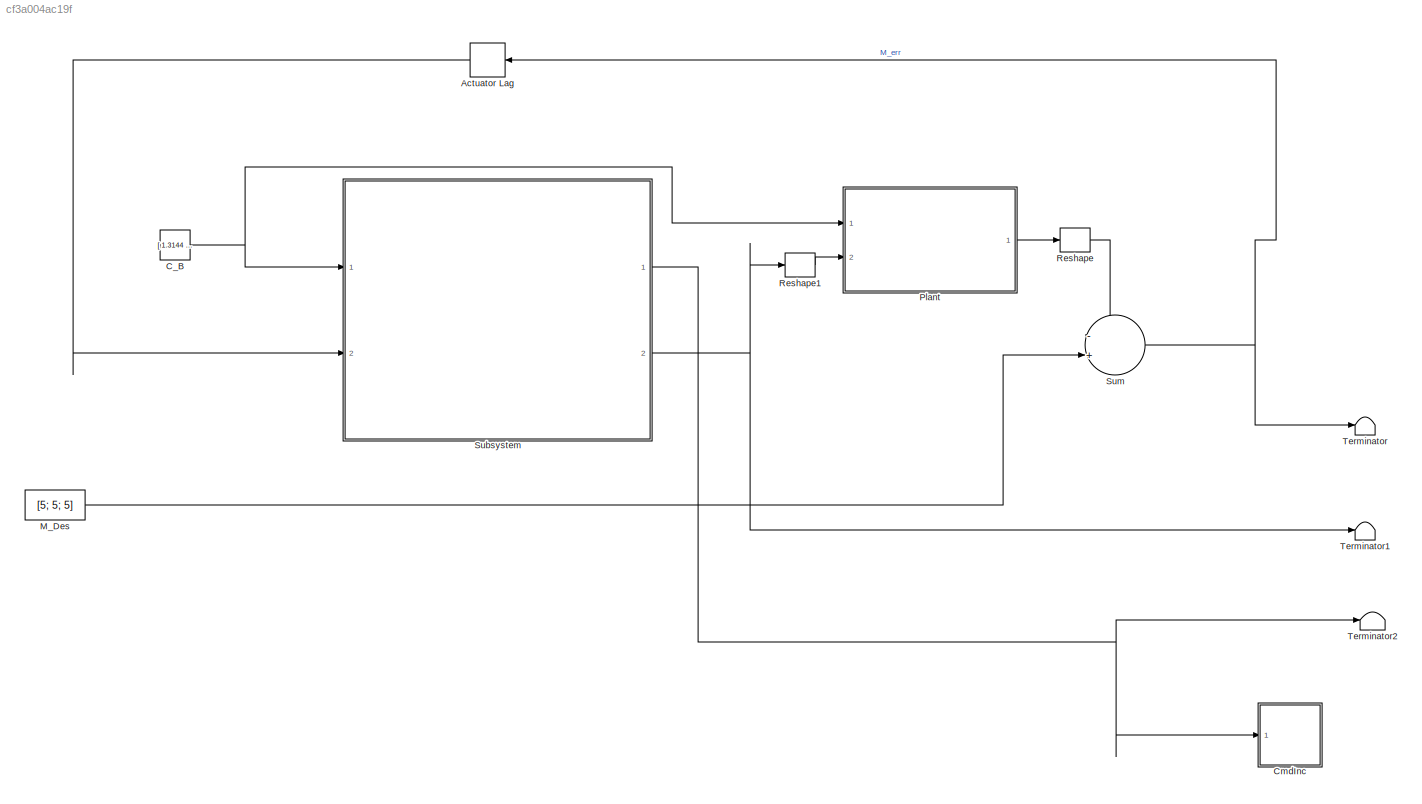
MODEL slx_cf3a004ac19f
KIND model
CONFIG AbsTol = auto
CONFIG FixedStep = auto
CONFIG MaxStep = auto
CONFIG MinStep = auto
CONFIG RelTol = 1e-3
CONFIG SampleTimeConstraint = Unconstrained
CONFIG Solver = ode3
CONFIG SolverMode = Auto
CONFIG SolverName = ode3
CONFIG StartTime = 0.0
CONFIG StopTime = 100.0
BLOCK [Delay]  Actuator Lag
  DelayLength = 1
  InitialCondition = [0;0;0]'
  InputPortMap = u0
  Ports = [1, 1]
  SampleTime = 0.1
BLOCK [Constant] C_B
  Value = [ 1.3144   -1.3144         0    0.5155\n;         0         0   -3.9998         0;\n    0.2782   -0.2782         0   -1.6581]
  VectorParams1D = off
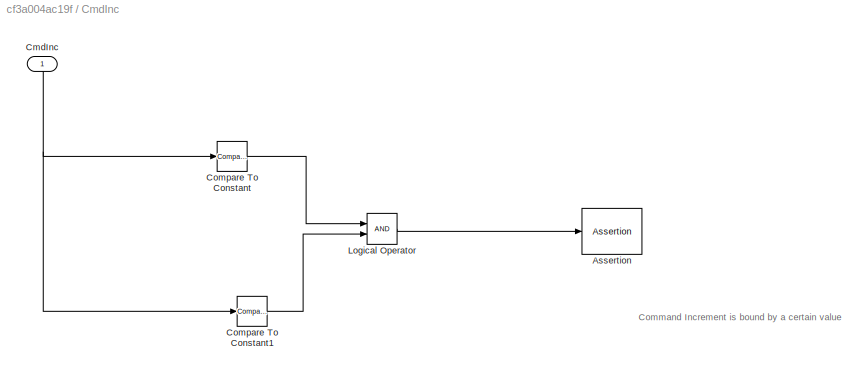
BLOCK [SubSystem] CmdInc
  Ports = [1]
  RequestExecContextInheritance = off
  Variant = off
BLOCK [Assertion] CmdInc/Assertion
BLOCK [Inport] CmdInc/CmdInc 
  IconDisplay = Port number
BLOCK [Reference] CmdInc/Compare To Constant  REF=simulink/Logic and Bit
Operations/Compare
To Constant
  Ports = [1, 1]
  SourceBlock = simulink/Logic and Bit\nOperations/Compare\nTo Constant
  SourceType = Compare To Constant
BLOCK [Reference] CmdInc/Compare To Constant1  REF=simulink/Logic and Bit
Operations/Compare
To Constant
  Ports = [1, 1]
  SourceBlock = simulink/Logic and Bit\nOperations/Compare\nTo Constant
  SourceType = Compare To Constant
BLOCK [Logic] CmdInc/Logical Operator
  AllPortsSameDT = off
  OutDataTypeStr = boolean
  Ports = [2, 1]
BLOCK [Constant] M_Des
  Value = [5; 5; 5]
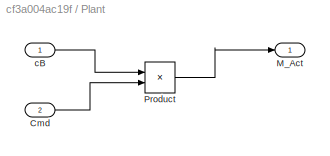
BLOCK [SubSystem] Plant
  Ports = [2, 1]
  RequestExecContextInheritance = off
  Variant = off
BLOCK [Inport] Plant/Cmd
  IconDisplay = Port number
  Port = 2
BLOCK [Outport] Plant/M_Act
  IconDisplay = Port number
BLOCK [Product] Plant/Product
  InputSameDT = off
  Multiplication = Matrix(*)
  OutDataTypeStr = Inherit: Inherit via internal rule
  Ports = [2, 1]
  RndMeth = Floor
  SaturateOnIntegerOverflow = off
BLOCK [Inport] Plant/cB
  IconDisplay = Port number
BLOCK [Reshape] Reshape
  Ports = [1, 1]
BLOCK [Reshape] Reshape1
  OutputDimensionality = Customize
  OutputDimensions = [4,1]
  Ports = [1, 1]
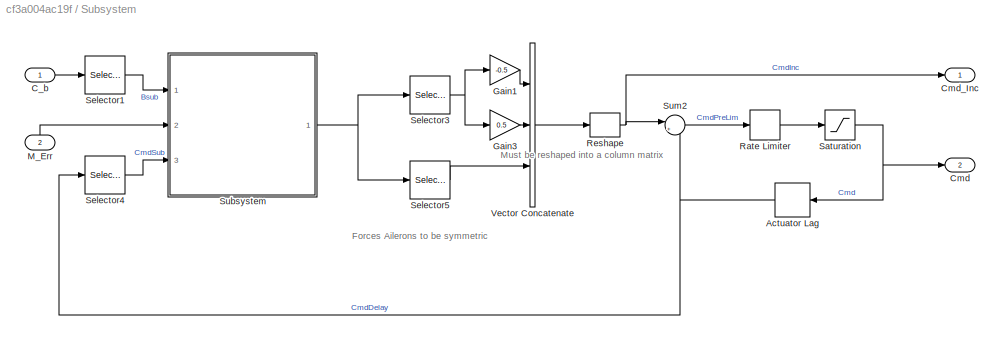
BLOCK [SubSystem] Subsystem
  Ports = [2, 2]
  RequestExecContextInheritance = off
  Variant = off
BLOCK [Delay] Subsystem/ Actuator Lag
  DelayLength = 1
  InitialCondition = [0 0 0 0]'
  InputPortMap = u0
  Ports = [1, 1]
BLOCK [Inport] Subsystem/C_b
  IconDisplay = Port number
BLOCK [Outport] Subsystem/Cmd
  IconDisplay = Port number
  Port = 2
BLOCK [Outport] Subsystem/Cmd_Inc
  IconDisplay = Port number
BLOCK [Gain] Subsystem/Gain1
  Gain = -0.5
  OutDataTypeStr = Inherit: Inherit via internal rule
  ParamDataTypeStr = Inherit: Inherit via internal rule
  SaturateOnIntegerOverflow = off
BLOCK [Gain] Subsystem/Gain3
  Gain = 0.5
  OutDataTypeStr = Inherit: Inherit via internal rule
  ParamDataTypeStr = Inherit: Inherit via internal rule
  SaturateOnIntegerOverflow = off
BLOCK [Inport] Subsystem/M_Err
  IconDisplay = Port number
  Port = 2
BLOCK [RateLimiter] Subsystem/Rate Limiter
  FallingSlewLimit = -0.1
  RisingSlewLimit = 0.1
  SampleTimeMode = inherited
BLOCK [Reshape] Subsystem/Reshape
  OutputDimensionality = Column vector (2-D)
  Ports = [1, 1]
BLOCK [Saturate] Subsystem/Saturation
  InputPortMap = u0
  LowerLimit = -30
  Ports = [1, 1]
  UpperLimit = 30
BLOCK [Selector] Subsystem/Selector1
  IndexOptions = Select all,Index vector (dialog)
  Indices = [1 3],[2:4]
  InputPortWidth = 3
  NumberOfDimensions = 2
  OutputSizes = 1,1
  Ports = [1, 1]
BLOCK [Selector] Subsystem/Selector3
  IndexOptions = Index vector (dialog)
  Indices = 1
  InputPortWidth = 3
  OutputSizes = 1
  Ports = [1, 1]
BLOCK [Selector] Subsystem/Selector4
  IndexOptions = Index vector (dialog)
  Indices = 2:4
  InputPortWidth = 4
  OutputSizes = 1
  Ports = [1, 1]
BLOCK [Selector] Subsystem/Selector5
  IndexOptions = Index vector (dialog)
  Indices = 2:3
  InputPortWidth = 3
  OutputSizes = 1
  Ports = [1, 1]
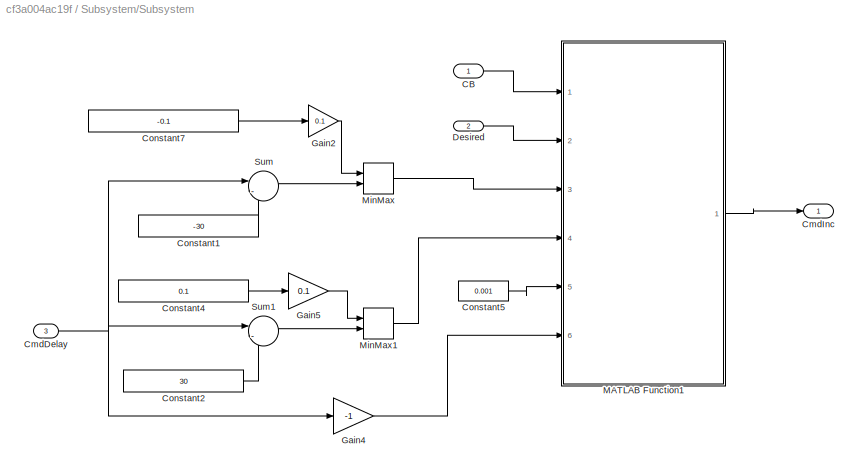
BLOCK [SubSystem] Subsystem/Subsystem
  Ports = [3, 1]
  RequestExecContextInheritance = off
  Variant = off
BLOCK [Inport] Subsystem/Subsystem/CB
  IconDisplay = Port number
BLOCK [Inport] Subsystem/Subsystem/CmdDelay
  IconDisplay = Port number
  Port = 3
BLOCK [Outport] Subsystem/Subsystem/CmdInc
  IconDisplay = Port number
BLOCK [Constant] Subsystem/Subsystem/Constant1
  Value = -30
BLOCK [Constant] Subsystem/Subsystem/Constant2
  Value = 30
BLOCK [Constant] Subsystem/Subsystem/Constant4
  Value = 0.1
BLOCK [Constant] Subsystem/Subsystem/Constant5
  Value = 0.001
BLOCK [Constant] Subsystem/Subsystem/Constant7
  Value = -0.1
BLOCK [Inport] Subsystem/Subsystem/Desired
  IconDisplay = Port number
  Port = 2
BLOCK [Gain] Subsystem/Subsystem/Gain2
  Gain = 0.1
  OutDataTypeStr = Inherit: Inherit via internal rule
  ParamDataTypeStr = Inherit: Inherit via internal rule
  SaturateOnIntegerOverflow = off
BLOCK [Gain] Subsystem/Subsystem/Gain4
  Gain = -1
  OutDataTypeStr = Inherit: Inherit via internal rule
  ParamDataTypeStr = Inherit: Inherit via internal rule
  SaturateOnIntegerOverflow = off
BLOCK [Gain] Subsystem/Subsystem/Gain5
  Gain = 0.1
  OutDataTypeStr = Inherit: Inherit via internal rule
  ParamDataTypeStr = Inherit: Inherit via internal rule
  SaturateOnIntegerOverflow = off
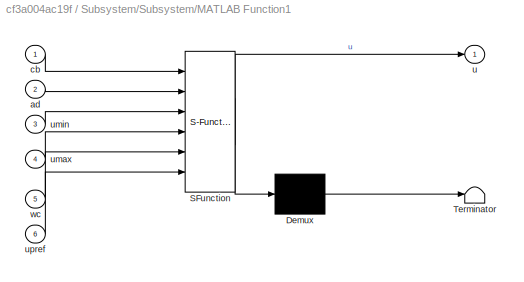
BLOCK [SubSystem] Subsystem/Subsystem/MATLAB Function1
  ErrorFcn = Stateflow.Translate.translate
  PermitHierarchicalResolution = ExplicitOnly
  Ports = [6, 1]
  RequestExecContextInheritance = off
  SFBlockType = MATLAB Function
  TreatAsAtomicUnit = on
  Variant = off
BLOCK [Demux] Subsystem/Subsystem/MATLAB Function1/ Demux 
  Outputs = 1
  Ports = [1, 1]
BLOCK [S-Function] Subsystem/Subsystem/MATLAB Function1/ SFunction 
  EnableBusSupport = on
  FunctionName = sf_sfun
  PortCounts = [6 2]
  Ports = [6, 2]
  SFunctionDeploymentMode = off
  Tag = Stateflow S-Function OCA_SUB_modified 2
BLOCK [Terminator] Subsystem/Subsystem/MATLAB Function1/ Terminator 
BLOCK [Inport] Subsystem/Subsystem/MATLAB Function1/ad
  IconDisplay = Port number
  Port = 2
BLOCK [Inport] Subsystem/Subsystem/MATLAB Function1/cb
  IconDisplay = Port number
BLOCK [Outport] Subsystem/Subsystem/MATLAB Function1/u
  IconDisplay = Port number
BLOCK [Inport] Subsystem/Subsystem/MATLAB Function1/umax
  IconDisplay = Port number
  Port = 4
BLOCK [Inport] Subsystem/Subsystem/MATLAB Function1/umin
  IconDisplay = Port number
  Port = 3
BLOCK [Inport] Subsystem/Subsystem/MATLAB Function1/upref
  IconDisplay = Port number
  Port = 6
BLOCK [Inport] Subsystem/Subsystem/MATLAB Function1/wc
  IconDisplay = Port number
  Port = 5
BLOCK [MinMax] Subsystem/Subsystem/MinMax
  Function = max
  InputSameDT = off
  Inputs = 2
  Ports = [2, 1]
  SaturateOnIntegerOverflow = off
BLOCK [MinMax] Subsystem/Subsystem/MinMax1
  InputSameDT = off
  Inputs = 2
  Ports = [2, 1]
  SaturateOnIntegerOverflow = off
BLOCK [Sum] Subsystem/Subsystem/Sum
  IconShape = round
  InputSameDT = off
  Inputs = |-+
  OutDataTypeStr = Inherit: Inherit via internal rule
  Ports = [2, 1]
  SaturateOnIntegerOverflow = off
BLOCK [Sum] Subsystem/Subsystem/Sum1
  IconShape = round
  InputSameDT = off
  Inputs = |-+
  OutDataTypeStr = Inherit: Inherit via internal rule
  Ports = [2, 1]
  SaturateOnIntegerOverflow = off
BLOCK [Sum] Subsystem/Sum2
  IconShape = round
  InputSameDT = off
  Inputs = |++
  OutDataTypeStr = Inherit: Inherit via internal rule
  Ports = [2, 1]
  SaturateOnIntegerOverflow = off
BLOCK [Concatenate] Subsystem/Vector Concatenate
  NumInputs = 3
  Ports = [3, 1]
BLOCK [Sum] Sum
  IconShape = round
  InputSameDT = off
  Inputs = -+
  OutDataTypeStr = Inherit: Inherit via internal rule
  Ports = [2, 1]
  SaturateOnIntegerOverflow = off
BLOCK [Terminator] Terminator
BLOCK [Terminator] Terminator1
BLOCK [Terminator] Terminator2
ANNOTATION CmdInc: Command Increment is bound by a certain value
ANNOTATION Subsystem: Forces Ailerons to be symmetric
ANNOTATION Subsystem: Must be reshaped into a column matrix
LINE  Actuator Lag:1 -> Subsystem:2
NET C_B:1 -> Plant:1, Subsystem:1
NET CmdInc/CmdInc :1 -> CmdInc/Compare To Constant1:1, CmdInc/Compare To Constant:1
LINE CmdInc/Compare To Constant1:1 -> CmdInc/Logical Operator:2
LINE CmdInc/Compare To Constant:1 -> CmdInc/Logical Operator:1
LINE CmdInc/Logical Operator:1 -> CmdInc/Assertion:1
LINE M_Des:1 -> Sum:2
LINE Plant/Cmd:1 -> Plant/Product:2
LINE Plant/Product:1 -> Plant/M_Act:1
LINE Plant/cB:1 -> Plant/Product:1
LINE Plant:1 -> Reshape:1
LINE Reshape1:1 -> Plant:2
LINE Reshape:1 -> Sum:1
NET Subsystem/ Actuator Lag:1 -> Subsystem/Selector4:1, Subsystem/Sum2:2
LINE Subsystem/C_b:1 -> Subsystem/Selector1:1
LINE Subsystem/Gain1:1 -> Subsystem/Vector Concatenate:1
LINE Subsystem/Gain3:1 -> Subsystem/Vector Concatenate:2
LINE Subsystem/M_Err:1 -> Subsystem/Subsystem:2
LINE Subsystem/Rate Limiter:1 -> Subsystem/Saturation:1
NET Subsystem/Reshape:1 -> Subsystem/Cmd_Inc:1, Subsystem/Sum2:1
NET Subsystem/Saturation:1 -> Subsystem/ Actuator Lag:1, Subsystem/Cmd:1
LINE Subsystem/Selector1:1 -> Subsystem/Subsystem:1
NET Subsystem/Selector3:1 -> Subsystem/Gain1:1, Subsystem/Gain3:1
LINE Subsystem/Selector4:1 -> Subsystem/Subsystem:3
LINE Subsystem/Selector5:1 -> Subsystem/Vector Concatenate:3
LINE Subsystem/Subsystem/CB:1 -> Subsystem/Subsystem/MATLAB Function1:1
NET Subsystem/Subsystem/CmdDelay:1 -> Subsystem/Subsystem/Gain4:1, Subsystem/Subsystem/Sum1:1, Subsystem/Subsystem/Sum:1
LINE Subsystem/Subsystem/Constant1:1 -> Subsystem/Subsystem/Sum:2
LINE Subsystem/Subsystem/Constant2:1 -> Subsystem/Subsystem/Sum1:2
LINE Subsystem/Subsystem/Constant4:1 -> Subsystem/Subsystem/Gain5:1
LINE Subsystem/Subsystem/Constant5:1 -> Subsystem/Subsystem/MATLAB Function1:5
LINE Subsystem/Subsystem/Constant7:1 -> Subsystem/Subsystem/Gain2:1
LINE Subsystem/Subsystem/Desired:1 -> Subsystem/Subsystem/MATLAB Function1:2
LINE Subsystem/Subsystem/Gain2:1 -> Subsystem/Subsystem/MinMax:1
LINE Subsystem/Subsystem/Gain4:1 -> Subsystem/Subsystem/MATLAB Function1:6
LINE Subsystem/Subsystem/Gain5:1 -> Subsystem/Subsystem/MinMax1:1
LINE Subsystem/Subsystem/MATLAB Function1:1 -> Subsystem/Subsystem/CmdInc:1
LINE Subsystem/Subsystem/MinMax1:1 -> Subsystem/Subsystem/MATLAB Function1:4
LINE Subsystem/Subsystem/MinMax:1 -> Subsystem/Subsystem/MATLAB Function1:3
LINE Subsystem/Subsystem/Sum1:1 -> Subsystem/Subsystem/MinMax1:2
LINE Subsystem/Subsystem/Sum:1 -> Subsystem/Subsystem/MinMax:2
NET Subsystem/Subsystem:1 -> Subsystem/Selector3:1, Subsystem/Selector5:1
LINE Subsystem/Sum2:1 -> Subsystem/Rate Limiter:1
LINE Subsystem/Vector Concatenate:1 -> Subsystem/Reshape:1
NET Subsystem:1 -> CmdInc:1, Terminator2:1
NET Subsystem:2 -> Reshape1:1, Terminator1:1
NET Sum:1 ->  Actuator Lag:1, Terminator:1
note: NET lines group one-source signal fan-out (src -> all destinations, sorted); 1:1 wires keep LINE
CHART Subsystem/Subsystem/MATLAB Function1 states=1 transitions=1
  STATE_LABEL 'eML_blk_kernel()'
  STATE_LABEL 'SCRIPT:\nfunction u = runOCA(cb,ad,umin,umax,wc,upref)\n%#codegen\n\n[e, u] = L1_OCA(cb,ad,umin,umax,wc,upref);\nend'
